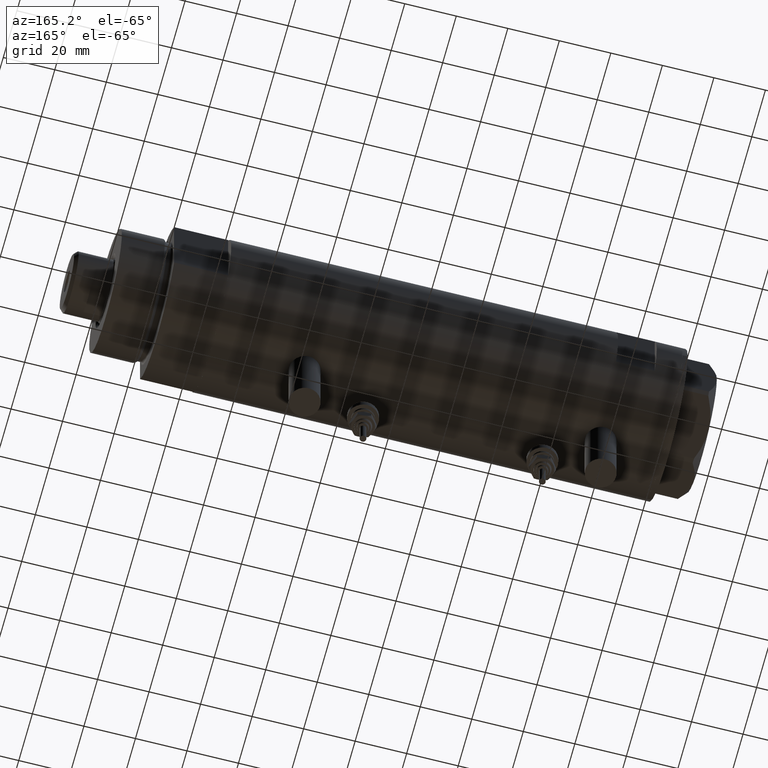
[diagram: clean part render]
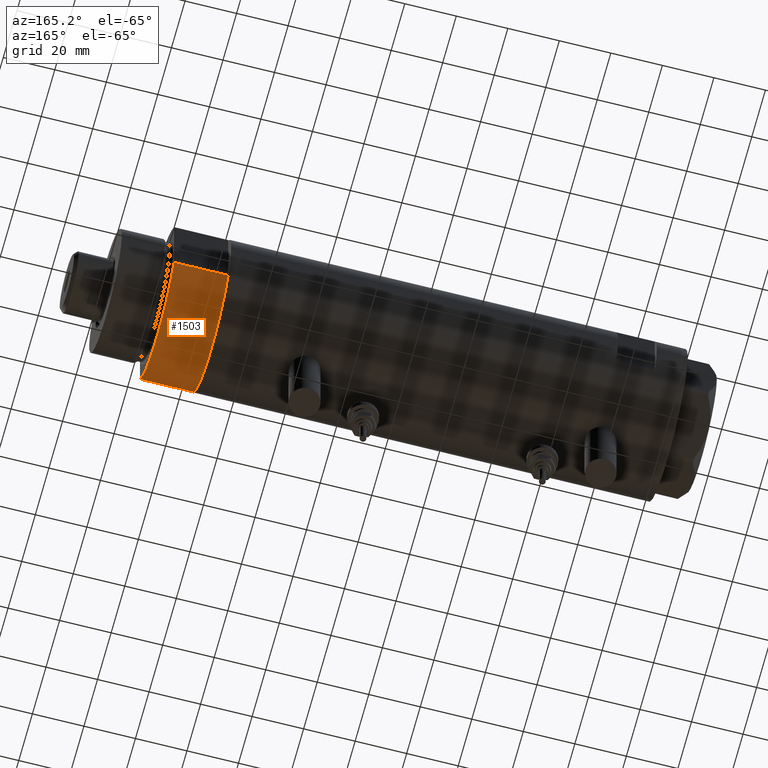
[diagram: same view with one face highlighted and labeled with its STEP entity id]
A machine part, auxiliary view. The second image highlights one B-rep face of the part: STEP entity #1503.
In plain terms, the highlighted cylindrical surface (partial cylindrical patch) has radius 29.5 mm, axis along (-1, -0, 0).
Its self-contained STEP definition (entity closure, byte-faithful):
#371 = EDGE_CURVE ( 'NONE', #5373, #1771, #2660, .T. ) ;
#394 = ORIENTED_EDGE ( 'NONE', *, *, #371, .T. ) ;
#914 = EDGE_CURVE ( 'NONE', #5734, #5694, #1977, .T. ) ;
#939 = CARTESIAN_POINT ( 'NONE',  ( 0.000000000000000000, 0.000000000000000000, 0.000000000000000000 ) ) ;
#1012 = DIRECTION ( 'NONE',  ( -0.000000000000000000, -0.000000000000000000, 1.000000000000000000 ) ) ;
#1166 = CARTESIAN_POINT ( 'NONE',  ( 15.66045976336583045, -25.00000000000000000, 21.00000000000000355 ) ) ;
#1342 = CARTESIAN_POINT ( 'NONE',  ( 15.66045976336582690, 25.00000000000000000, 0.000000000000000000 ) ) ;
#1343 = CIRCLE ( 'NONE', #5402, 29.50000000000000355 ) ;
#1503 = ADVANCED_FACE ( 'NONE', ( #2240 ), #2206, .T. ) ;
#1614 = CARTESIAN_POINT ( 'NONE',  ( 15.66045976336583401, -25.00000000000000000, 0.000000000000000000 ) ) ;
#1771 = VERTEX_POINT ( 'NONE', #1989 ) ;
#1805 = EDGE_LOOP ( 'NONE', ( #3577, #4967, #4399, #394 ) ) ;
#1977 = LINE ( 'NONE', #2443, #4302 ) ;
#1989 = CARTESIAN_POINT ( 'NONE',  ( 15.66045976336583045, 24.99999999999999645, 20.99999999999999645 ) ) ;
#2206 = CYLINDRICAL_SURFACE ( 'NONE', #3539, 29.50000000000000355 ) ;
#2240 = FACE_OUTER_BOUND ( 'NONE', #1805, .T. ) ;
#2443 = CARTESIAN_POINT ( 'NONE',  ( 15.66045976336583401, -25.00000000000000000, 0.000000000000000000 ) ) ;
#2660 = LINE ( 'NONE', #4090, #4103 ) ;
#2671 = DIRECTION ( 'NONE',  ( -0.000000000000000000, -0.000000000000000000, -1.000000000000000000 ) ) ;
#3102 = DIRECTION ( 'NONE',  ( 0.000000000000000000, 0.000000000000000000, 1.000000000000000000 ) ) ;
#3230 = CARTESIAN_POINT ( 'NONE',  ( 0.000000000000000000, 0.000000000000000000, 21.00000000000000000 ) ) ;
#3539 = AXIS2_PLACEMENT_3D ( 'NONE', #3622, #2671, #4096 ) ;
#3577 = ORIENTED_EDGE ( 'NONE', *, *, #4267, .F. ) ;
#3622 = CARTESIAN_POINT ( 'NONE',  ( 0.000000000000000000, 0.000000000000000000, 21.00000000000000000 ) ) ;
#4090 = CARTESIAN_POINT ( 'NONE',  ( 15.66045976336583401, 25.00000000000000000, 0.000000000000000000 ) ) ;
#4096 = DIRECTION ( 'NONE',  ( -1.000000000000000000, 0.000000000000000000, 0.000000000000000000 ) ) ;
#4103 = VECTOR ( 'NONE', #4152, 1000.000000000000000 ) ;
#4149 = CIRCLE ( 'NONE', #4245, 29.50000000000000355 ) ;
#4152 = DIRECTION ( 'NONE',  ( -0.000000000000000000, -0.000000000000000000, 1.000000000000000000 ) ) ;
#4245 = AXIS2_PLACEMENT_3D ( 'NONE', #939, #3102, #4971 ) ;
#4267 = EDGE_CURVE ( 'NONE', #5694, #1771, #1343, .T. ) ;
#4302 = VECTOR ( 'NONE', #1012, 1000.000000000000000 ) ;
#4399 = ORIENTED_EDGE ( 'NONE', *, *, #4998, .T. ) ;
#4621 = DIRECTION ( 'NONE',  ( 1.000000000000000000, 0.000000000000000000, 0.000000000000000000 ) ) ;
#4967 = ORIENTED_EDGE ( 'NONE', *, *, #914, .F. ) ;
#4971 = DIRECTION ( 'NONE',  ( 1.000000000000000000, 0.000000000000000000, 0.000000000000000000 ) ) ;
#4998 = EDGE_CURVE ( 'NONE', #5734, #5373, #4149, .T. ) ;
#5373 = VERTEX_POINT ( 'NONE', #1342 ) ;
#5402 = AXIS2_PLACEMENT_3D ( 'NONE', #3230, #5887, #4621 ) ;
#5694 = VERTEX_POINT ( 'NONE', #1166 ) ;
#5734 = VERTEX_POINT ( 'NONE', #1614 ) ;
#5887 = DIRECTION ( 'NONE',  ( 0.000000000000000000, 0.000000000000000000, 1.000000000000000000 ) ) ;